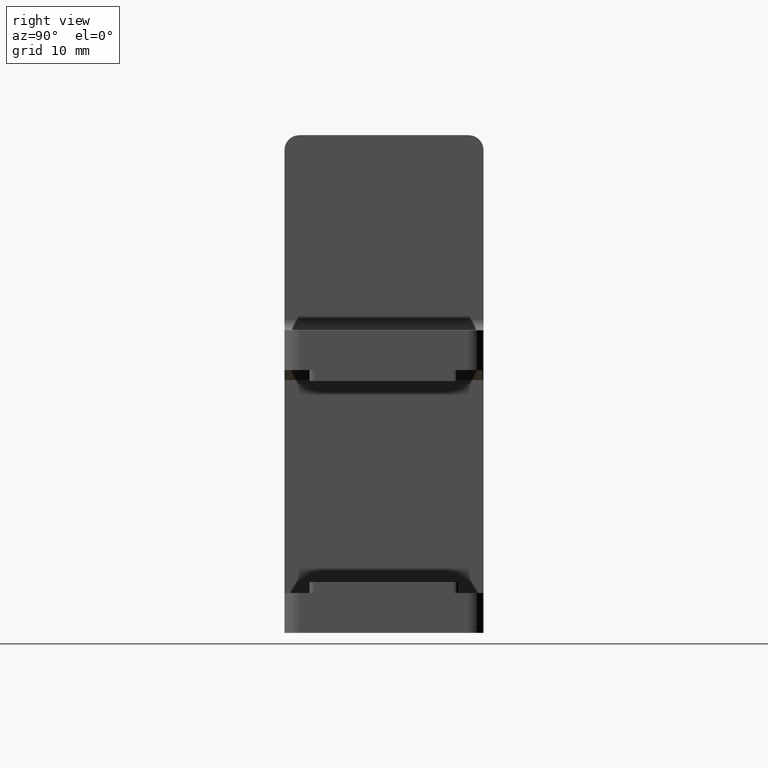
[diagram: clean part render]
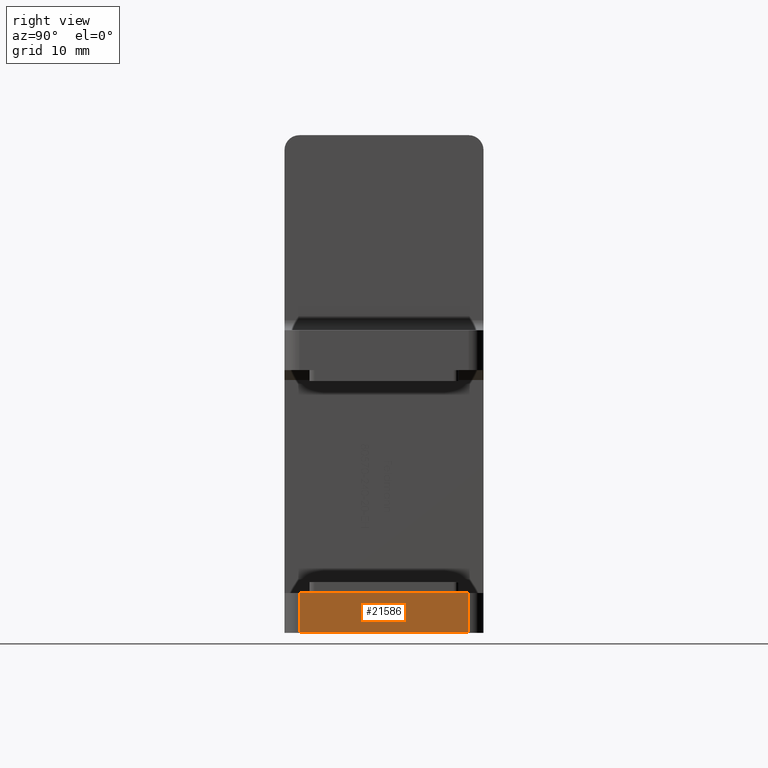
[diagram: same view with one face highlighted and labeled with its STEP entity id]
A machine part, right view. The second image highlights one B-rep face of the part: STEP entity #21586.
In plain terms, the highlighted planar face has unit normal (-1, 0, 0).
Its self-contained STEP definition (entity closure, byte-faithful):
#5371 = ORIENTED_EDGE ( 'NONE', *, *, #24580, .T. ) ;
#7790 = FACE_OUTER_BOUND ( 'NONE', #26467, .T. ) ;
#8132 = DIRECTION ( 'NONE',  ( -0.000000000000000000, -1.000000000000000000, -0.000000000000000000 ) ) ;
#9154 = DIRECTION ( 'NONE',  ( -0.000000000000000000, -1.000000000000000000, -0.000000000000000000 ) ) ;
#9279 = AXIS2_PLACEMENT_3D ( 'NONE', #17818, #22843, #22236 ) ;
#9810 = LINE ( 'NONE', #55062, #56609 ) ;
#11304 = VERTEX_POINT ( 'NONE', #42504 ) ;
#12591 = CARTESIAN_POINT ( 'NONE',  ( 50.00000000000000000, 10.00000000000000000, 4.000000000000000000 ) ) ;
#17818 = CARTESIAN_POINT ( 'NONE',  ( 50.00000000000000000, 10.00000000000000000, 0.000000000000000000 ) ) ;
#18835 = CARTESIAN_POINT ( 'NONE',  ( 50.00000000000000000, 10.00000000000000000, 0.000000000000000000 ) ) ;
#21586 = ADVANCED_FACE ( 'NONE', ( #7790 ), #27712, .F. ) ;
#22236 = DIRECTION ( 'NONE',  ( 0.000000000000000000, 0.000000000000000000, 1.000000000000000000 ) ) ;
#22843 = DIRECTION ( 'NONE',  ( -1.000000000000000000, 0.000000000000000000, 0.000000000000000000 ) ) ;
#23861 = DIRECTION ( 'NONE',  ( -0.000000000000000000, -0.000000000000000000, 1.000000000000000000 ) ) ;
#24158 = LINE ( 'NONE', #12591, #56641 ) ;
#24580 = EDGE_CURVE ( 'NONE', #56776, #11304, #24158, .T. ) ;
#26467 = EDGE_LOOP ( 'NONE', ( #5371, #27927, #38508, #57197 ) ) ;
#27712 = PLANE ( 'NONE',  #9279 ) ;
#27927 = ORIENTED_EDGE ( 'NONE', *, *, #34816, .T. ) ;
#30041 = CARTESIAN_POINT ( 'NONE',  ( 50.00000000000000000, -8.500000000000001776, 0.000000000000000000 ) ) ;
#33866 = CARTESIAN_POINT ( 'NONE',  ( 50.00000000000000000, 8.500000000000000000, 0.000000000000000000 ) ) ;
#34816 = EDGE_CURVE ( 'NONE', #11304, #58580, #9810, .T. ) ;
#38508 = ORIENTED_EDGE ( 'NONE', *, *, #40995, .F. ) ;
#39962 = VECTOR ( 'NONE', #23861, 1000.000000000000000 ) ;
#40995 = EDGE_CURVE ( 'NONE', #46680, #58580, #59182, .T. ) ;
#42504 = CARTESIAN_POINT ( 'NONE',  ( 50.00000000000000000, -8.500000000000001776, 4.000000000000000000 ) ) ;
#44054 = VECTOR ( 'NONE', #9154, 1000.000000000000000 ) ;
#44666 = CARTESIAN_POINT ( 'NONE',  ( 50.00000000000000000, 8.500000000000000000, 4.000000000000000000 ) ) ;
#46680 = VERTEX_POINT ( 'NONE', #33866 ) ;
#47323 = CARTESIAN_POINT ( 'NONE',  ( 50.00000000000000000, 8.500000000000000000, 0.000000000000000000 ) ) ;
#50430 = DIRECTION ( 'NONE',  ( 0.000000000000000000, 0.000000000000000000, -1.000000000000000000 ) ) ;
#52761 = LINE ( 'NONE', #47323, #39962 ) ;
#55062 = CARTESIAN_POINT ( 'NONE',  ( 50.00000000000000000, -8.500000000000001776, 0.000000000000000000 ) ) ;
#56609 = VECTOR ( 'NONE', #50430, 1000.000000000000000 ) ;
#56641 = VECTOR ( 'NONE', #8132, 1000.000000000000000 ) ;
#56776 = VERTEX_POINT ( 'NONE', #44666 ) ;
#57197 = ORIENTED_EDGE ( 'NONE', *, *, #62420, .T. ) ;
#58580 = VERTEX_POINT ( 'NONE', #30041 ) ;
#59182 = LINE ( 'NONE', #18835, #44054 ) ;
#62420 = EDGE_CURVE ( 'NONE', #46680, #56776, #52761, .T. ) ;